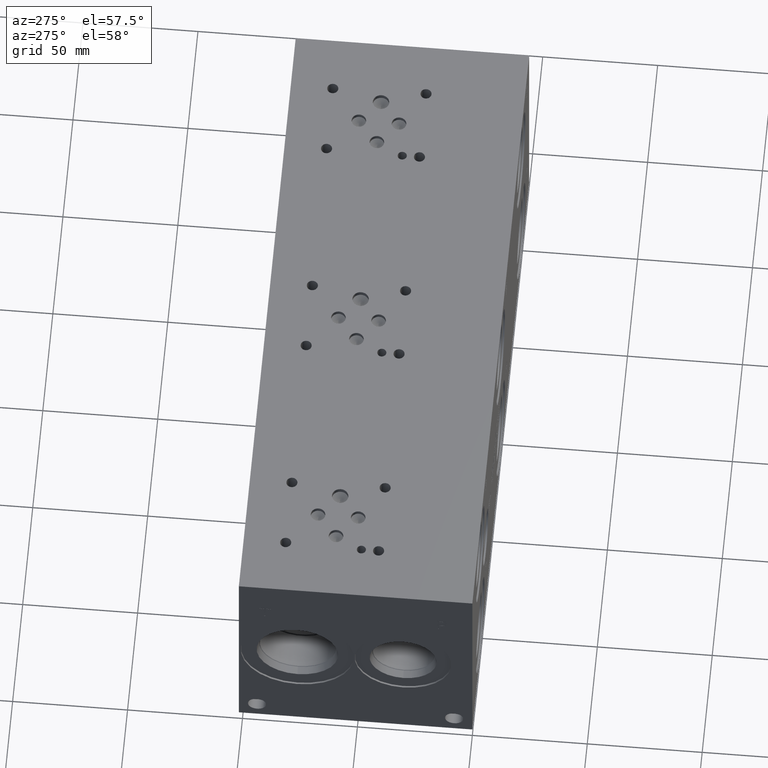
[diagram: clean part render]
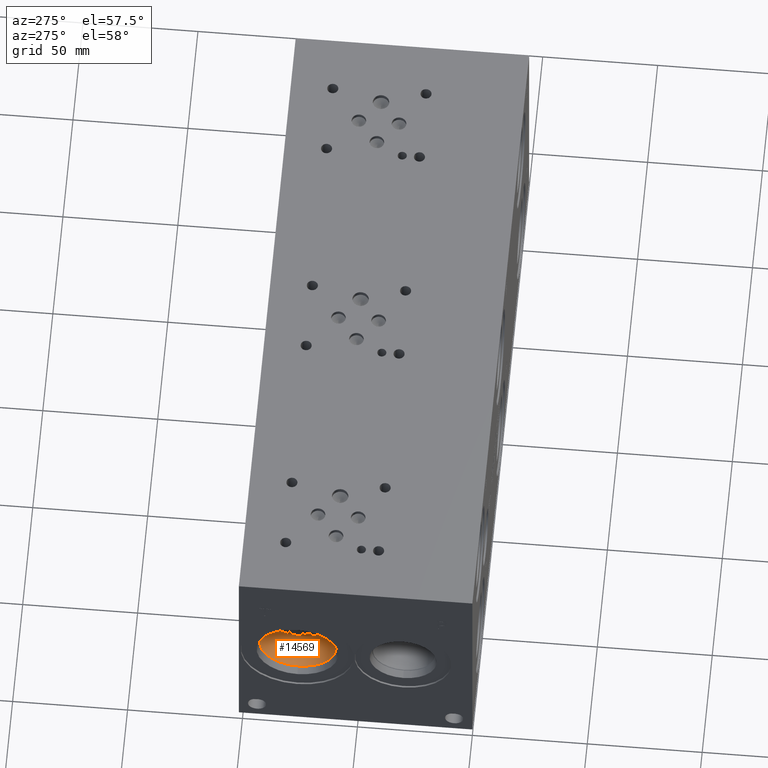
[diagram: same view with one face highlighted and labeled with its STEP entity id]
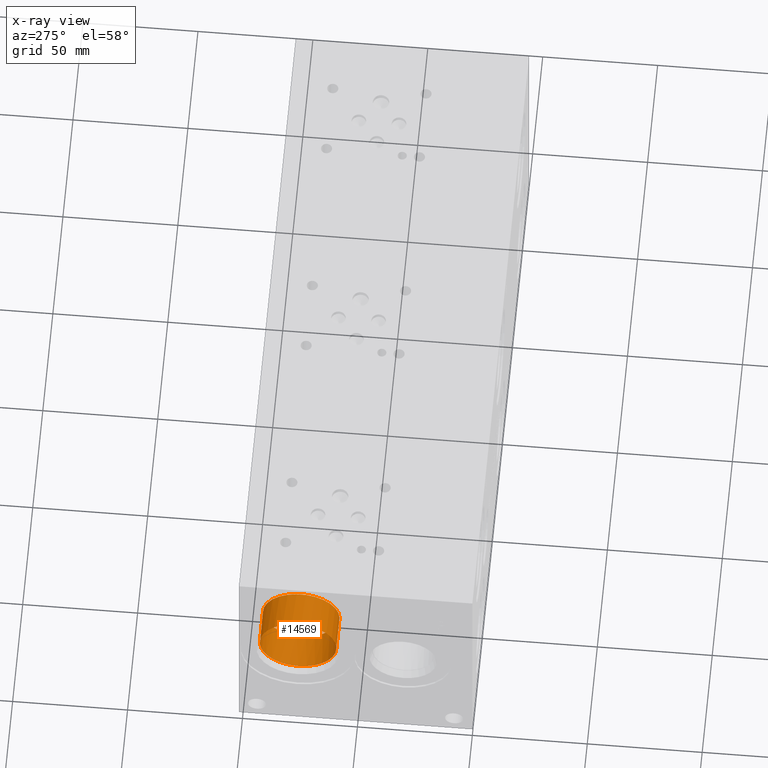
[diagram: x-ray of the same camera — body ghosted, the highlighted face saturated]
A machine part, auxiliary view. The second image highlights one B-rep face of the part: STEP entity #14569.
The next image is the same camera in x-ray: the body ghosted, the highlighted face saturated — about 0% of this face is hidden behind the body in this view.
In plain terms, the highlighted cylindrical surface (bore or boss wall) has radius 16.67 mm, axis along (-1, 0, 0).
Its self-contained STEP definition (entity closure, byte-faithful):
#128=CYLINDRICAL_SURFACE('',#15332,16.67);
#525=CIRCLE('',#15329,16.67);
#526=CIRCLE('',#15330,16.67);
#528=CIRCLE('',#15333,16.67);
#529=CIRCLE('',#15334,16.67);
#1854=FACE_OUTER_BOUND('',#2697,.T.);
#2697=EDGE_LOOP('',(#12307,#12308,#12309,#12310,#12311,#12312));
#4075=LINE('',#24694,#5380);
#5380=VECTOR('',#18118,16.67);
#6645=VERTEX_POINT('',#24684);
#6646=VERTEX_POINT('',#24685);
#6648=VERTEX_POINT('',#24691);
#6649=VERTEX_POINT('',#24692);
#8604=EDGE_CURVE('',#6645,#6646,#525,.T.);
#8605=EDGE_CURVE('',#6646,#6645,#526,.T.);
#8607=EDGE_CURVE('',#6648,#6649,#528,.T.);
#8608=EDGE_CURVE('',#6648,#6646,#4075,.T.);
#8609=EDGE_CURVE('',#6649,#6648,#529,.T.);
#12307=ORIENTED_EDGE('',*,*,#8607,.F.);
#12308=ORIENTED_EDGE('',*,*,#8608,.T.);
#12309=ORIENTED_EDGE('',*,*,#8604,.F.);
#12310=ORIENTED_EDGE('',*,*,#8605,.F.);
#12311=ORIENTED_EDGE('',*,*,#8608,.F.);
#12312=ORIENTED_EDGE('',*,*,#8609,.F.);
#14569=ADVANCED_FACE('',(#1854),#128,.F.);
#15329=AXIS2_PLACEMENT_3D('',#24686,#18108,#18109);
#15330=AXIS2_PLACEMENT_3D('',#24687,#18110,#18111);
#15332=AXIS2_PLACEMENT_3D('',#24690,#18114,#18115);
#15333=AXIS2_PLACEMENT_3D('',#24693,#18116,#18117);
#15334=AXIS2_PLACEMENT_3D('',#24695,#18119,#18120);
#18108=DIRECTION('center_axis',(-1.,0.,0.));
#18109=DIRECTION('ref_axis',(0.,1.,0.));
#18110=DIRECTION('center_axis',(-1.,0.,0.));
#18111=DIRECTION('ref_axis',(0.,1.,0.));
#18114=DIRECTION('center_axis',(-1.,0.,0.));
#18115=DIRECTION('ref_axis',(0.,1.,0.));
#18116=DIRECTION('center_axis',(1.,0.,0.));
#18117=DIRECTION('ref_axis',(0.,1.,0.));
#18118=DIRECTION('',(1.,0.,0.));
#18119=DIRECTION('center_axis',(1.,0.,0.));
#18120=DIRECTION('ref_axis',(0.,1.,0.));
#24684=CARTESIAN_POINT('',(19.8374,92.87,50.8));
#24685=CARTESIAN_POINT('',(19.8374,59.53,50.8));
#24686=CARTESIAN_POINT('Origin',(19.8374,76.2,50.8));
#24687=CARTESIAN_POINT('Origin',(19.8374,76.2,50.8));
#24690=CARTESIAN_POINT('Origin',(9.9187,76.2,50.8));
#24691=CARTESIAN_POINT('',(4.2723,59.53,50.8));
#24692=CARTESIAN_POINT('',(4.2723,76.2,34.13));
#24693=CARTESIAN_POINT('Origin',(4.2723,76.2,50.8));
#24694=CARTESIAN_POINT('',(9.9187,59.53,50.8));
#24695=CARTESIAN_POINT('Origin',(4.2723,76.2,50.8));